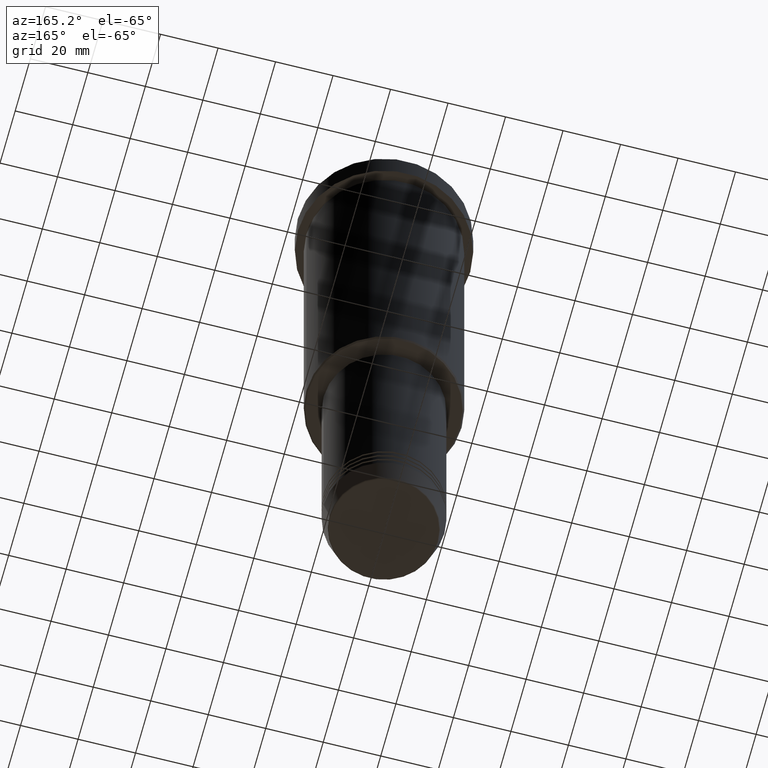
[diagram: clean part render]
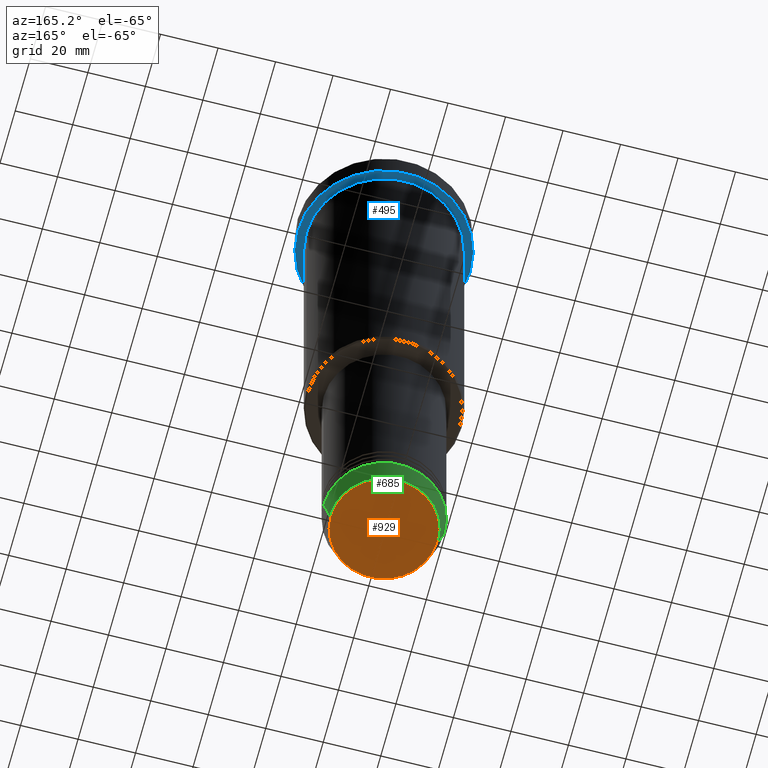
[diagram: same view with three faces highlighted in distinct colors, each labeled with its STEP entity id]
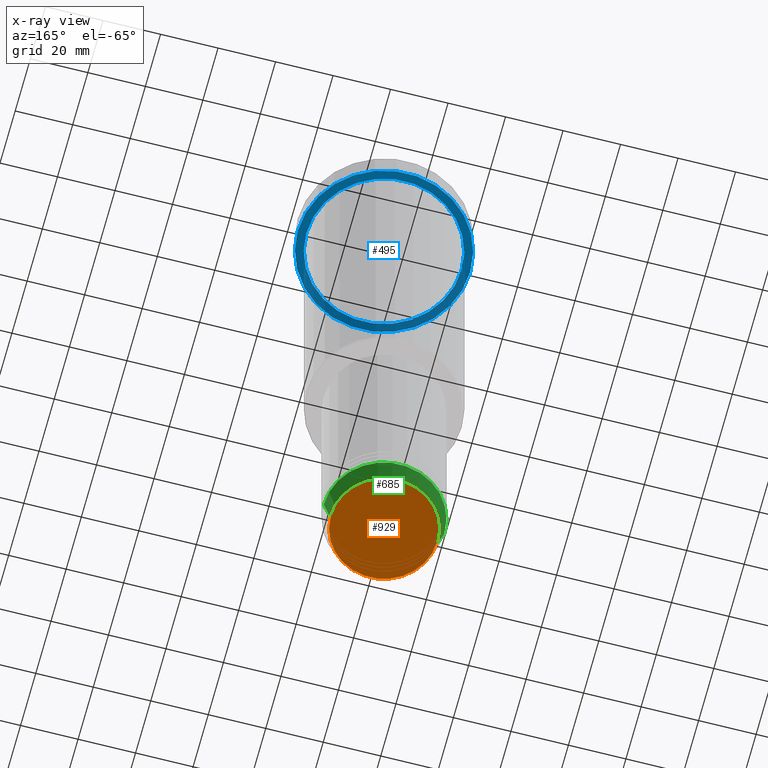
[diagram: x-ray of the same camera — body ghosted, the three highlighted faces saturated]
A machine part, auxiliary view with three faces highlighted in distinct colors.
The next image is the same camera in x-ray (body ghosted, the three faces saturated) — at least one of them is partly hidden behind the body in this view.
Their STEP definitions:

[orange] entity #929 — the highlighted planar face has unit normal (0, -0, 1).
#22 = DIRECTION ( 'NONE',  ( 1.000000000000000000, 0.000000000000000000, 0.000000000000000000 ) ) ;
#102 = FACE_OUTER_BOUND ( 'NONE', #1119, .T. ) ;
#120 = PLANE ( 'NONE',  #974 ) ;
#282 = EDGE_CURVE ( 'NONE', #491, #1049, #783, .T. ) ;
#305 = CARTESIAN_POINT ( 'NONE',  ( 0.000000000000000000, 0.000000000000000000, -230.9999999999999716 ) ) ;
#366 = CIRCLE ( 'NONE', #1028, 18.47274296656154391 ) ;
#408 = CARTESIAN_POINT ( 'NONE',  ( 18.47274296656154391, 0.000000000000000000, -230.9999999999999716 ) ) ;
#439 = DIRECTION ( 'NONE',  ( 0.000000000000000000, 0.000000000000000000, -1.000000000000000000 ) ) ;
#486 = DIRECTION ( 'NONE',  ( 0.000000000000000000, -0.000000000000000000, 1.000000000000000000 ) ) ;
#491 = VERTEX_POINT ( 'NONE', #408 ) ;
#521 = AXIS2_PLACEMENT_3D ( 'NONE', #642, #439, #756 ) ;
#570 = EDGE_CURVE ( 'NONE', #1049, #491, #366, .T. ) ;
#590 = DIRECTION ( 'NONE',  ( 0.000000000000000000, 0.000000000000000000, -1.000000000000000000 ) ) ;
#615 = CARTESIAN_POINT ( 'NONE',  ( 0.000000000000000000, 0.000000000000000000, -230.9999999999999716 ) ) ;
#642 = CARTESIAN_POINT ( 'NONE',  ( 0.000000000000000000, 0.000000000000000000, -230.9999999999999716 ) ) ;
#676 = ORIENTED_EDGE ( 'NONE', *, *, #570, .T. ) ;
#705 = ORIENTED_EDGE ( 'NONE', *, *, #282, .T. ) ;
#756 = DIRECTION ( 'NONE',  ( 1.000000000000000000, 0.000000000000000000, 0.000000000000000000 ) ) ;
#783 = CIRCLE ( 'NONE', #521, 18.47274296656154391 ) ;
#816 = CARTESIAN_POINT ( 'NONE',  ( -18.47274296656154391, 2.291831503831604046E-15, -230.9999999999999716 ) ) ;
#929 = ADVANCED_FACE ( 'NONE', ( #102 ), #120, .F. ) ;
#974 = AXIS2_PLACEMENT_3D ( 'NONE', #615, #486, #1110 ) ;
#1028 = AXIS2_PLACEMENT_3D ( 'NONE', #305, #590, #22 ) ;
#1049 = VERTEX_POINT ( 'NONE', #816 ) ;
#1110 = DIRECTION ( 'NONE',  ( 1.000000000000000000, 0.000000000000000000, 0.000000000000000000 ) ) ;
#1119 = EDGE_LOOP ( 'NONE', ( #705, #676 ) ) ;

[blue] entity #495 — the highlighted planar face has unit normal (0, 0, -1).
#20 = FACE_BOUND ( 'NONE', #55, .T. ) ;
#26 = PLANE ( 'NONE',  #875 ) ;
#38 = CIRCLE ( 'NONE', #855, 27.00000000000000355 ) ;
#55 = EDGE_LOOP ( 'NONE', ( #258, #1050 ) ) ;
#71 = EDGE_CURVE ( 'NONE', #1124, #1111, #601, .T. ) ;
#82 = DIRECTION ( 'NONE',  ( -0.000000000000000000, -0.000000000000000000, 1.000000000000000000 ) ) ;
#86 = ORIENTED_EDGE ( 'NONE', *, *, #152, .F. ) ;
#121 = VERTEX_POINT ( 'NONE', #1013 ) ;
#129 = DIRECTION ( 'NONE',  ( 0.000000000000000000, 0.000000000000000000, -1.000000000000000000 ) ) ;
#138 = CARTESIAN_POINT ( 'NONE',  ( 0.000000000000000000, 0.000000000000000000, -9.999999999999992895 ) ) ;
#152 = EDGE_CURVE ( 'NONE', #1111, #1124, #738, .T. ) ;
#165 = DIRECTION ( 'NONE',  ( -1.000000000000000000, 0.000000000000000000, 0.000000000000000000 ) ) ;
#172 = VERTEX_POINT ( 'NONE', #775 ) ;
#185 = DIRECTION ( 'NONE',  ( -1.000000000000000000, 0.000000000000000000, 0.000000000000000000 ) ) ;
#233 = ORIENTED_EDGE ( 'NONE', *, *, #71, .F. ) ;
#258 = ORIENTED_EDGE ( 'NONE', *, *, #428, .T. ) ;
#289 = CARTESIAN_POINT ( 'NONE',  ( 0.000000000000000000, 0.000000000000000000, -9.999999999999992895 ) ) ;
#319 = FACE_OUTER_BOUND ( 'NONE', #421, .T. ) ;
#421 = EDGE_LOOP ( 'NONE', ( #86, #233 ) ) ;
#428 = EDGE_CURVE ( 'NONE', #172, #121, #539, .T. ) ;
#453 = AXIS2_PLACEMENT_3D ( 'NONE', #807, #508, #616 ) ;
#487 = DIRECTION ( 'NONE',  ( -1.000000000000000000, 0.000000000000000000, -0.000000000000000000 ) ) ;
#495 = ADVANCED_FACE ( 'NONE', ( #20, #319 ), #26, .T. ) ;
#508 = DIRECTION ( 'NONE',  ( -0.000000000000000000, -0.000000000000000000, 1.000000000000000000 ) ) ;
#539 = CIRCLE ( 'NONE', #585, 27.00000000000000355 ) ;
#585 = AXIS2_PLACEMENT_3D ( 'NONE', #986, #82, #165 ) ;
#601 = CIRCLE ( 'NONE', #453, 30.00000000000000000 ) ;
#616 = DIRECTION ( 'NONE',  ( 1.000000000000000000, 0.000000000000000000, 0.000000000000000000 ) ) ;
#639 = AXIS2_PLACEMENT_3D ( 'NONE', #138, #688, #1038 ) ;
#688 = DIRECTION ( 'NONE',  ( -0.000000000000000000, -0.000000000000000000, 1.000000000000000000 ) ) ;
#712 = CARTESIAN_POINT ( 'NONE',  ( 30.00000000000000000, 0.000000000000000000, -9.999999999999992895 ) ) ;
#738 = CIRCLE ( 'NONE', #639, 30.00000000000000000 ) ;
#762 = CARTESIAN_POINT ( 'NONE',  ( -30.00000000000000000, 3.673940397442059178E-15, -9.999999999999992895 ) ) ;
#775 = CARTESIAN_POINT ( 'NONE',  ( -27.00000000000000355, 0.000000000000000000, -9.999999999999992895 ) ) ;
#794 = CARTESIAN_POINT ( 'NONE',  ( 0.000000000000000000, 30.00000000000000000, -9.999999999999992895 ) ) ;
#807 = CARTESIAN_POINT ( 'NONE',  ( 0.000000000000000000, 0.000000000000000000, -9.999999999999992895 ) ) ;
#828 = DIRECTION ( 'NONE',  ( -0.000000000000000000, -0.000000000000000000, 1.000000000000000000 ) ) ;
#834 = EDGE_CURVE ( 'NONE', #121, #172, #38, .T. ) ;
#855 = AXIS2_PLACEMENT_3D ( 'NONE', #289, #828, #185 ) ;
#875 = AXIS2_PLACEMENT_3D ( 'NONE', #794, #129, #487 ) ;
#986 = CARTESIAN_POINT ( 'NONE',  ( 0.000000000000000000, 0.000000000000000000, -9.999999999999992895 ) ) ;
#1013 = CARTESIAN_POINT ( 'NONE',  ( 27.00000000000000355, 3.306546357697854128E-15, -9.999999999999992895 ) ) ;
#1038 = DIRECTION ( 'NONE',  ( 1.000000000000000000, 0.000000000000000000, 0.000000000000000000 ) ) ;
#1050 = ORIENTED_EDGE ( 'NONE', *, *, #834, .T. ) ;
#1111 = VERTEX_POINT ( 'NONE', #712 ) ;
#1124 = VERTEX_POINT ( 'NONE', #762 ) ;

[green] entity #685 — the highlighted conical surface has half-angle 15 deg.
#16 = CARTESIAN_POINT ( 'NONE',  ( 21.00000000000000000, 0.000000000000000000, -223.0000000000000000 ) ) ;
#44 = CARTESIAN_POINT ( 'NONE',  ( 0.000000000000000000, 0.000000000000000000, -230.6294095225512706 ) ) ;
#48 = CARTESIAN_POINT ( 'NONE',  ( 18.95570587970606624, 0.000000000000000000, -230.6294095225512706 ) ) ;
#63 = VERTEX_POINT ( 'NONE', #48 ) ;
#76 = AXIS2_PLACEMENT_3D ( 'NONE', #1089, #827, #1072 ) ;
#143 = DIRECTION ( 'NONE',  ( 1.000000000000000000, 0.000000000000000000, 0.000000000000000000 ) ) ;
#170 = ORIENTED_EDGE ( 'NONE', *, *, #1046, .F. ) ;
#182 = CIRCLE ( 'NONE', #581, 18.95570587970606624 ) ;
#212 = EDGE_CURVE ( 'NONE', #63, #218, #576, .T. ) ;
#218 = VERTEX_POINT ( 'NONE', #821 ) ;
#227 = DIRECTION ( 'NONE',  ( -0.000000000000000000, -0.000000000000000000, 1.000000000000000000 ) ) ;
#297 = EDGE_LOOP ( 'NONE', ( #343, #1174, #170, #804 ) ) ;
#325 = FACE_OUTER_BOUND ( 'NONE', #297, .T. ) ;
#343 = ORIENTED_EDGE ( 'NONE', *, *, #627, .T. ) ;
#355 = DIRECTION ( 'NONE',  ( 0.2588190451025213501, 0.000000000000000000, 0.9659258262890680902 ) ) ;
#471 = CIRCLE ( 'NONE', #76, 21.00000000000000000 ) ;
#576 = LINE ( 'NONE', #16, #1125 ) ;
#581 = AXIS2_PLACEMENT_3D ( 'NONE', #44, #1146, #143 ) ;
#611 = DIRECTION ( 'NONE',  ( 1.000000000000000000, 0.000000000000000000, 0.000000000000000000 ) ) ;
#627 = EDGE_CURVE ( 'NONE', #63, #653, #182, .T. ) ;
#631 = LINE ( 'NONE', #1014, #1105 ) ;
#640 = DIRECTION ( 'NONE',  ( -0.2588190451025213501, 3.169619151431772337E-17, 0.9659258262890680902 ) ) ;
#653 = VERTEX_POINT ( 'NONE', #1077 ) ;
#685 = ADVANCED_FACE ( 'NONE', ( #325 ), #888, .T. ) ;
#696 = AXIS2_PLACEMENT_3D ( 'NONE', #1053, #227, #611 ) ;
#730 = CARTESIAN_POINT ( 'NONE',  ( -21.00000000000000000, 2.571758278209441661E-15, -223.0000000000000000 ) ) ;
#747 = EDGE_CURVE ( 'NONE', #653, #1071, #631, .T. ) ;
#804 = ORIENTED_EDGE ( 'NONE', *, *, #212, .F. ) ;
#821 = CARTESIAN_POINT ( 'NONE',  ( 21.00000000000000000, 0.000000000000000000, -223.0000000000000000 ) ) ;
#827 = DIRECTION ( 'NONE',  ( -0.000000000000000000, -0.000000000000000000, 1.000000000000000000 ) ) ;
#888 = CONICAL_SURFACE ( 'NONE', #696, 21.00000000000000000, 0.2617993877991500740 ) ;
#1014 = CARTESIAN_POINT ( 'NONE',  ( -21.00000000000000000, 2.571758278209441661E-15, -223.0000000000000000 ) ) ;
#1046 = EDGE_CURVE ( 'NONE', #218, #1071, #471, .T. ) ;
#1053 = CARTESIAN_POINT ( 'NONE',  ( 0.000000000000000000, 0.000000000000000000, -223.0000000000000000 ) ) ;
#1071 = VERTEX_POINT ( 'NONE', #730 ) ;
#1072 = DIRECTION ( 'NONE',  ( 1.000000000000000000, 0.000000000000000000, 0.000000000000000000 ) ) ;
#1077 = CARTESIAN_POINT ( 'NONE',  ( -18.95570587970606624, 2.446581365662755730E-15, -230.6294095225512706 ) ) ;
#1089 = CARTESIAN_POINT ( 'NONE',  ( 0.000000000000000000, 0.000000000000000000, -223.0000000000000000 ) ) ;
#1105 = VECTOR ( 'NONE', #640, 1000.000000000000000 ) ;
#1125 = VECTOR ( 'NONE', #355, 1000.000000000000000 ) ;
#1146 = DIRECTION ( 'NONE',  ( -0.000000000000000000, -0.000000000000000000, 1.000000000000000000 ) ) ;
#1174 = ORIENTED_EDGE ( 'NONE', *, *, #747, .T. ) ;